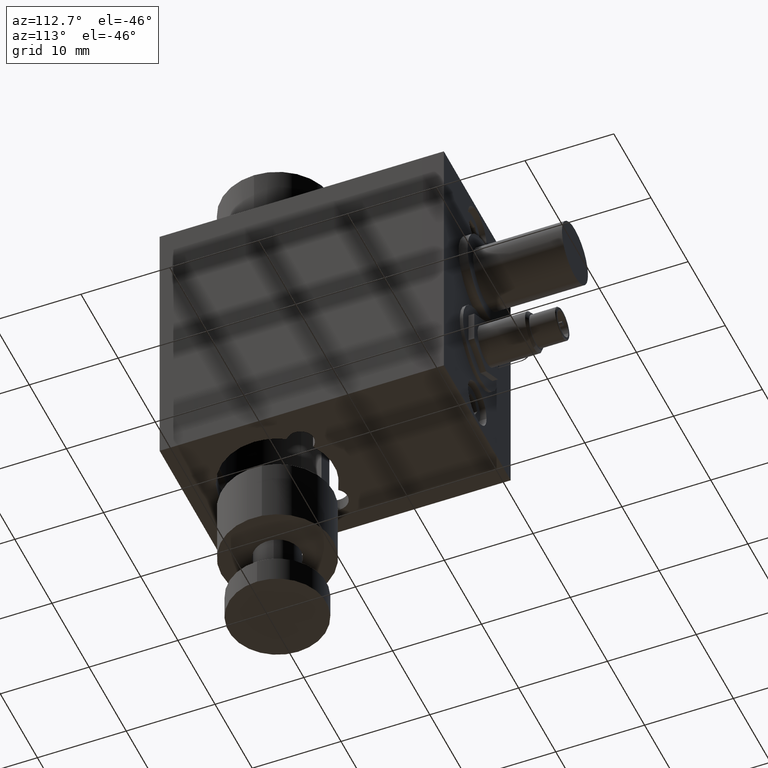
[diagram: clean part render]
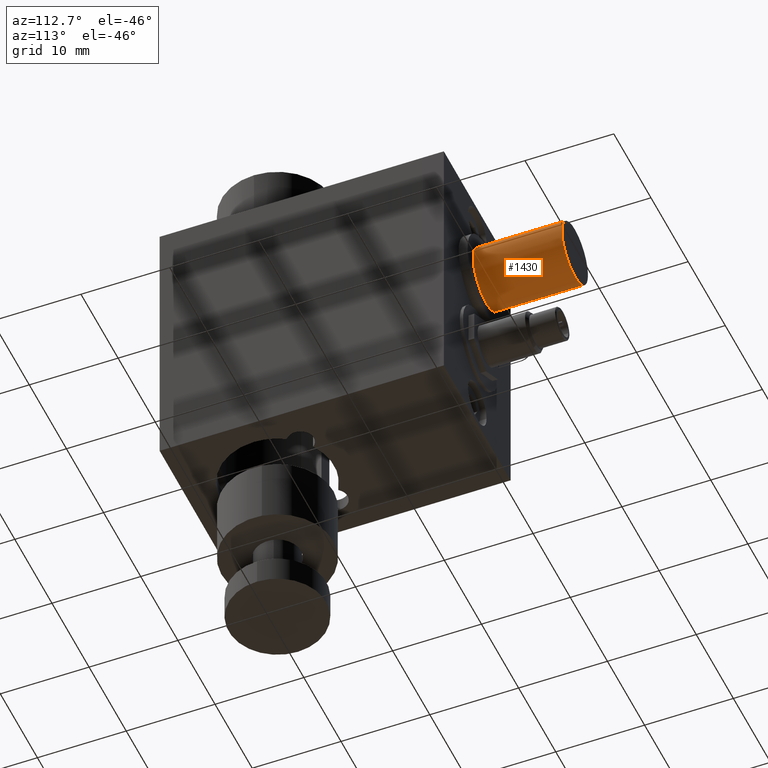
[diagram: same view with one face highlighted and labeled with its STEP entity id]
A machine part, auxiliary view. The second image highlights one B-rep face of the part: STEP entity #1430.
In plain terms, the highlighted cylindrical surface (edge-blend (fillet) strip) has radius 3.5 mm, axis along (0, 1, -0).
Its self-contained STEP definition (entity closure, byte-faithful):
#1363 = EDGE_CURVE ( 'NONE', #1435, #1364, #5858, .T. ) ;
#1364 = VERTEX_POINT ( 'NONE', #5854 ) ;
#1365 = ORIENTED_EDGE ( 'NONE', *, *, #1366, .F. ) ;
#1366 = EDGE_CURVE ( 'NONE', #1367, #1364, #5852, .T. ) ;
#1367 = VERTEX_POINT ( 'NONE', #5847 ) ;
#1368 = ORIENTED_EDGE ( 'NONE', *, *, #1416, .F. ) ;
#1416 = EDGE_CURVE ( 'NONE', #1434, #1367, #6021, .T. ) ;
#1430 = ADVANCED_FACE ( 'NONE', ( #6073 ), #6110, .T. ) ;
#1431 = EDGE_LOOP ( 'NONE', ( #1432, #1436, #1365, #1368 ) ) ;
#1432 = ORIENTED_EDGE ( 'NONE', *, *, #1433, .T. ) ;
#1433 = EDGE_CURVE ( 'NONE', #1434, #1435, #6106, .T. ) ;
#1434 = VERTEX_POINT ( 'NONE', #6102 ) ;
#1435 = VERTEX_POINT ( 'NONE', #6101 ) ;
#1436 = ORIENTED_EDGE ( 'NONE', *, *, #1363, .T. ) ;
#5847 = CARTESIAN_POINT ( 'NONE',  ( 0.3702637541390058100, 33.93620178041542300, -16.29327567586733100 ) ) ;
#5848 = DIRECTION ( 'NONE',  ( 0.6339795550189446500, 0.0000000000000000000, 0.7733498068907632700 ) ) ;
#5849 = DIRECTION ( 'NONE',  ( 1.387778780781445400E-017, 1.000000000000000000, -1.646463124818846300E-017 ) ) ;
#5850 = CARTESIAN_POINT ( 'NONE',  ( -1.848664688427299900, 33.93620178041542300, -18.99999999998500000 ) ) ;
#5851 = AXIS2_PLACEMENT_3D ( 'NONE', #5850, #5849, #5848 ) ;
#5852 = CIRCLE ( 'NONE', #5851, 3.499999999999999100 ) ;
#5854 = CARTESIAN_POINT ( 'NONE',  ( -4.067593130993604000, 33.93620178041542300, -21.70672432410267300 ) ) ;
#5855 = DIRECTION ( 'NONE',  ( 1.387778780781445400E-017, 1.000000000000000000, -1.646463124818846300E-017 ) ) ;
#5856 = VECTOR ( 'NONE', #5855, 1000.000000000000000 ) ;
#5857 = CARTESIAN_POINT ( 'NONE',  ( -4.067593130993605800, 33.93620178041542300, -21.70672432410267700 ) ) ;
#5858 = LINE ( 'NONE', #5857, #5856 ) ;
#6018 = DIRECTION ( 'NONE',  ( 1.387778780781445400E-017, 1.000000000000000000, -1.646463124818846300E-017 ) ) ;
#6019 = VECTOR ( 'NONE', #6018, 1000.000000000000000 ) ;
#6020 = CARTESIAN_POINT ( 'NONE',  ( 0.3702637541390064700, 33.93620178041542300, -16.29327567586732800 ) ) ;
#6021 = LINE ( 'NONE', #6020, #6019 ) ;
#6073 = FACE_OUTER_BOUND ( 'NONE', #1431, .T. ) ;
#6101 = CARTESIAN_POINT ( 'NONE',  ( -4.067593130993604900, 23.93620178041542300, -21.70672432410267700 ) ) ;
#6102 = CARTESIAN_POINT ( 'NONE',  ( 0.3702637541390064200, 23.93620178041542300, -16.29327567586732800 ) ) ;
#6103 = DIRECTION ( 'NONE',  ( 0.6339795550189442100, 0.0000000000000000000, 0.7733498068907636000 ) ) ;
#6104 = DIRECTION ( 'NONE',  ( 1.387778780781445400E-017, 1.000000000000000000, -1.646463124818846300E-017 ) ) ;
#6105 = AXIS2_PLACEMENT_3D ( 'NONE', #6111, #6104, #6103 ) ;
#6106 = CIRCLE ( 'NONE', #6105, 3.500000000000002200 ) ;
#6107 = DIRECTION ( 'NONE',  ( 0.6339795550189447600, 0.0000000000000000000, 0.7733498068907631600 ) ) ;
#6108 = DIRECTION ( 'NONE',  ( 1.387778780781445400E-017, 1.000000000000000000, -1.646463124818846300E-017 ) ) ;
#6109 = AXIS2_PLACEMENT_3D ( 'NONE', #6112, #6108, #6107 ) ;
#6110 = CYLINDRICAL_SURFACE ( 'NONE', #6109, 3.499999999999999600 ) ;
#6111 = CARTESIAN_POINT ( 'NONE',  ( -1.848664688427300100, 23.93620178041542300, -18.99999999998500000 ) ) ;
#6112 = CARTESIAN_POINT ( 'NONE',  ( -1.848664688427299900, 33.93620178041542300, -18.99999999998500000 ) ) ;